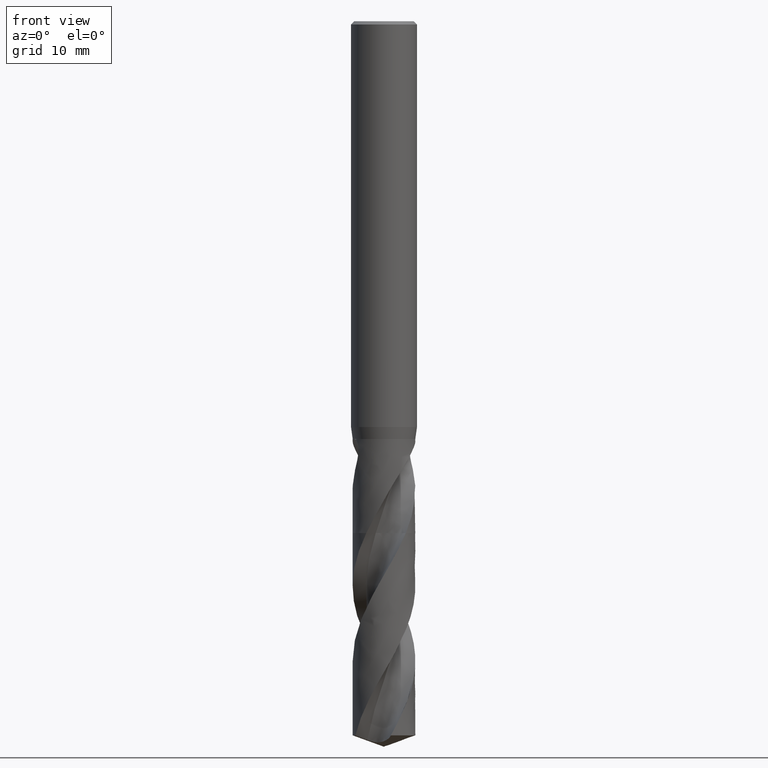
[diagram: clean part render]
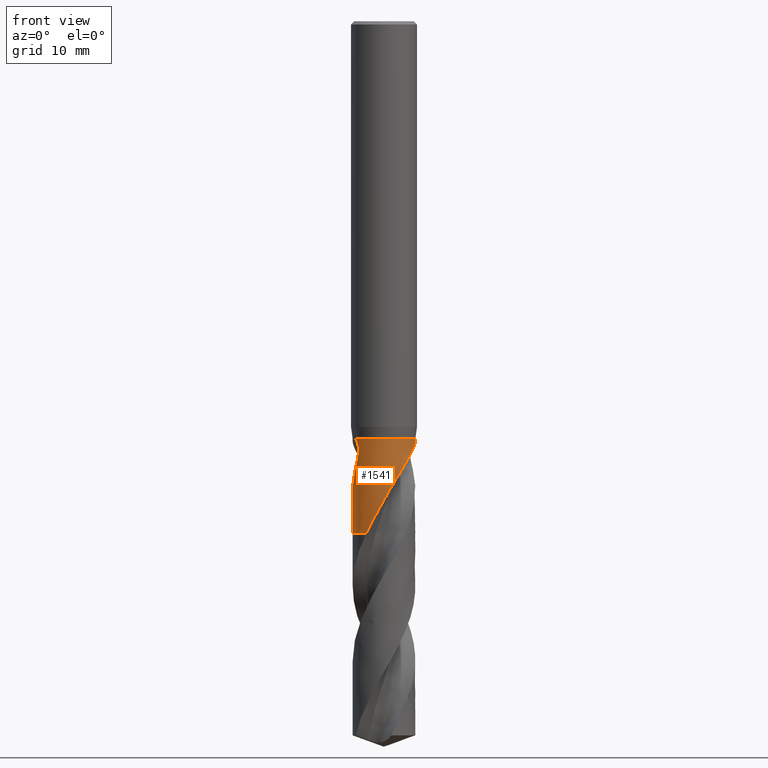
[diagram: same view with one face highlighted and labeled with its STEP entity id]
A machine part, front view. The second image highlights one B-rep face of the part: STEP entity #1541.
In plain terms, the highlighted face is a freeform B-spline surface patch.
Its self-contained STEP definition (entity closure, byte-faithful):
#100 = VERTEX_POINT('', #101);
#101 = CARTESIAN_POINT('', (-2.72189717389326, -0.844852516568349, -38.));
#108 = EDGE_CURVE('', #109, #100, #111, .T.);
#109 = VERTEX_POINT('', #110);
#110 = CARTESIAN_POINT('', (2.72261215262905, 0.842545587108875, -38.));
#111 = CIRCLE('', #112, 2.85);
#112 = AXIS2_PLACEMENT_3D('', #113, #114, #115);
#113 = CARTESIAN_POINT('', (1.42477179352876E-31, 2.32682891837997E-15, -38.));
#114 = DIRECTION('', (3.74939945665464E-33, 6.12323399573677E-17, -1.));
#115 = DIRECTION('', (-1., 6.12323399573677E-17, 0.));
#243 = VERTEX_POINT('', #244);
#244 = CARTESIAN_POINT('', (-1.60573856955049, -2.3545920339324, -46.55));
#253 = VERTEX_POINT('', #254);
#254 = CARTESIAN_POINT('', (2.26490238820969, -1.72994715869649, -39.6856971486502));
#274 = EDGE_CURVE('', #253, #243, #275, .T.);
#275 = B_SPLINE_CURVE_WITH_KNOTS('', 3, (#276, #277, #278, #279, #280, #281, #282, #283, #284, #285, #286, #287, #288, #289, #290, #291, #292, #293, #294, #295, #296, #297, #298, #299, #300, #301, #302, #303, #304, #305, #306, #307, #308, #309, #310, #311, #312, #313, #314, #315, #316, #317, #318, #319, #320, #321, #322, #323, #324, #325, #326, #327, #328, #329, #330, #331, #332, #333, #334, #335, #336, #337, #338, #339, #340, #341, #342, #343, #344, #345, #346, #347, #348, #349, #350, #351, #352, #353, #354, #355, #356, #357, #358, #359, #360, #361, #362, #363, #364, #365, #366, #367, #368, #369), .UNSPECIFIED., .F., .U., (4, 3, 3, 3, 3, 3, 3, 3, 3, 3, 3, 3, 3, 3, 3, 3, 3, 3, 3, 3, 3, 3, 3, 3, 3, 3, 3, 3, 3, 3, 3, 4), (0., 0.294464144787275, 0.588972866153418, 0.883540244718308, 1.17818620395919, 1.47291648056389, 1.76774567896791, 2.06267584458891, 2.35772589141371, 2.554577184641, 2.99727557387801, 3.19418350220039, 3.48958176285616, 3.68658211971523, 3.77414700893122, 3.97111472366981, 4.16799051263594, 4.36486817226672, 4.5617980451251, 4.64934990336675, 4.70772733627239, 5.00363635286242, 5.44757668672882, 5.64475350545712, 5.94059537577835, 6.23640703650116, 6.53220582574839, 6.82800243163335, 7.271761333795, 7.46888025135684, 7.91252490164702, 8.12718020859697), .UNSPECIFIED.);
#276 = CARTESIAN_POINT('', (2.26490238820969, -1.72994715869649, -39.6856971486502));
#277 = CARTESIAN_POINT('', (2.22643989728255, -1.78030348728112, -39.7606586389366));
#278 = CARTESIAN_POINT('', (2.18657839591994, -1.82900770856898, -39.836042715674));
#279 = CARTESIAN_POINT('', (2.14550143545426, -1.87598603152149, -39.9118059557993));
#280 = CARTESIAN_POINT('', (2.10441825667508, -1.92297146614771, -39.9875806651174));
#281 = CARTESIAN_POINT('', (2.06209945244589, -1.96825288441196, -40.0637707712371));
#282 = CARTESIAN_POINT('', (2.01873752853315, -2.01176509336749, -40.140345548052));
#283 = CARTESIAN_POINT('', (1.97536696824123, -2.05528596863441, -40.2169355762384));
#284 = CARTESIAN_POINT('', (1.93093244142023, -2.09705810344443, -40.2939435595798));
#285 = CARTESIAN_POINT('', (1.88561339589091, -2.13704518465023, -40.3713278083038));
#286 = CARTESIAN_POINT('', (1.84028226076345, -2.17704293306531, -40.4487327005444));
#287 = CARTESIAN_POINT('', (1.79404637925782, -2.21527190113545, -40.5265467785033));
#288 = CARTESIAN_POINT('', (1.74709188477468, -2.25170378739177, -40.6047403980937));
#289 = CARTESIAN_POINT('', (1.70012395355817, -2.28814609917918, -40.6829563939619));
#290 = CARTESIAN_POINT('', (1.65242147965214, -2.32280276603105, -40.7615866251728));
#291 = CARTESIAN_POINT('', (1.60415889110439, -2.35566853612531, -40.8405950700608));
#292 = CARTESIAN_POINT('', (1.55588010394225, -2.38854533712265, -40.9196300329489));
#293 = CARTESIAN_POINT('', (1.50702149850317, -2.41964310000126, -40.9990726509764));
#294 = CARTESIAN_POINT('', (1.45776011308407, -2.44896620080825, -41.0788957200608));
#295 = CARTESIAN_POINT('', (1.40848185760931, -2.47829934360531, -41.158746125356));
#296 = CARTESIAN_POINT('', (1.35878772191129, -2.5058645230155, -41.239009652429));
#297 = CARTESIAN_POINT('', (1.30884380724996, -2.53168479243046, -41.319655706458));
#298 = CARTESIAN_POINT('', (1.25887959172656, -2.55751555709256, -41.4003345409454));
#299 = CARTESIAN_POINT('', (1.20864517552323, -2.58161058334391, -41.4814205854727));
#300 = CARTESIAN_POINT('', (1.15829812833869, -2.60400565396613, -41.562884449988));
#301 = CARTESIAN_POINT('', (1.12470761901627, -2.61894718223003, -41.6172354567196));
#302 = CARTESIAN_POINT('', (1.09106112828081, -2.63313480925272, -41.6717644508913));
#303 = CARTESIAN_POINT('', (1.05740813055805, -2.64658044378586, -41.7264663171521));
#304 = CARTESIAN_POINT('', (0.98172598673967, -2.67681829822158, -41.8494852096617));
#305 = CARTESIAN_POINT('', (0.905977415624192, -2.70331275061656, -41.9734381882025));
#306 = CARTESIAN_POINT('', (0.8306871670691, -2.72625362548438, -42.0982614928412));
#307 = CARTESIAN_POINT('', (0.7971987984048, -2.736457503009, -42.1537816820272));
#308 = CARTESIAN_POINT('', (0.763794385510486, -2.74596129867328, -42.2094857503471));
#309 = CARTESIAN_POINT('', (0.730516149445259, -2.75478604530365, -42.2653674487006));
#310 = CARTESIAN_POINT('', (0.680592648979268, -2.76802479514755, -42.3492003173757));
#311 = CARTESIAN_POINT('', (0.630932048174867, -2.77974113058791, -42.4334440765467));
#312 = CARTESIAN_POINT('', (0.581633168390934, -2.79001843316984, -42.5180583056703));
#313 = CARTESIAN_POINT('', (0.548755869490707, -2.79687234040577, -42.5744873221977));
#314 = CARTESIAN_POINT('', (0.516035705898308, -2.80308684254361, -42.6310895454872));
#315 = CARTESIAN_POINT('', (0.48351862419217, -2.808684699296, -42.6878648053344));
#316 = CARTESIAN_POINT('', (0.469065073434076, -2.81117289634389, -42.7131008983953));
#317 = CARTESIAN_POINT('', (0.454651371479108, -2.8135393434265, -42.7383721677776));
#318 = CARTESIAN_POINT('', (0.440282695430469, -2.81578606220438, -42.7636792823976));
#319 = CARTESIAN_POINT('', (0.407961918113677, -2.82083981225537, -42.8206048901149));
#320 = CARTESIAN_POINT('', (0.37587535974101, -2.82528719942966, -42.8777208742024));
#321 = CARTESIAN_POINT('', (0.344015709561874, -2.82916121696427, -42.9349978549934));
#322 = CARTESIAN_POINT('', (0.312170928433521, -2.83303342647641, -42.9922481043441));
#323 = CARTESIAN_POINT('', (0.280550344519059, -2.83633427966577, -43.0496643198734));
#324 = CARTESIAN_POINT('', (0.249038421070775, -2.83909842464656, -43.107162435716));
#325 = CARTESIAN_POINT('', (0.217526198204052, -2.84186259589157, -43.1646610978914));
#326 = CARTESIAN_POINT('', (0.186119538886619, -2.84409143426985, -43.2222456102403));
#327 = CARTESIAN_POINT('', (0.154597533164307, -2.84580385879623, -43.2797798412868));
#328 = CARTESIAN_POINT('', (0.123067167602375, -2.84751673746865, -43.3373293307832));
#329 = CARTESIAN_POINT('', (0.091391380329286, -2.8487116619238, -43.3948171219617));
#330 = CARTESIAN_POINT('', (0.0596097014495644, -2.84937654294638, -43.4522499041329));
#331 = CARTESIAN_POINT('', (0.0454800775201362, -2.84967213836922, -43.477783596559));
#332 = CARTESIAN_POINT('', (0.0313295613559441, -2.84986301069273, -43.5033071654459));
#333 = CARTESIAN_POINT('', (0.0171622097772594, -2.84994832559391, -43.5288215137339));
#334 = CARTESIAN_POINT('', (0.00771576703069309, -2.85000521147869, -43.5458338557359));
#335 = CARTESIAN_POINT('', (-0.00173822956431968, -2.85001517149301, -43.5628422270776));
#336 = CARTESIAN_POINT('', (-0.0111985572827413, -2.84997799856679, -43.5798469062747));
#337 = CARTESIAN_POINT('', (-0.0591519552388076, -2.8497895729459, -43.6660418218127));
#338 = CARTESIAN_POINT('', (-0.107272598938241, -2.8483882324842, -43.7521497281514));
#339 = CARTESIAN_POINT('', (-0.155397720053053, -2.84576027602507, -43.8382089746442));
#340 = CARTESIAN_POINT('', (-0.227597893543104, -2.8418176591988, -43.9673201827464));
#341 = CARTESIAN_POINT('', (-0.299838418190636, -2.83511727214766, -44.0963549877317));
#342 = CARTESIAN_POINT('', (-0.371969277534249, -2.82562185307423, -44.2252157245138));
#343 = CARTESIAN_POINT('', (-0.404006315605659, -2.82140444730467, -44.2824494295849));
#344 = CARTESIAN_POINT('', (-0.43602697511165, -2.8166349193951, -44.3396543406759));
#345 = CARTESIAN_POINT('', (-0.468018041302603, -2.8113091457567, -44.3968213165894));
#346 = CARTESIAN_POINT('', (-0.516017075451456, -2.8033184151817, -44.4825940011471));
#347 = CARTESIAN_POINT('', (-0.563952194996042, -2.79407401491043, -44.5682949758555));
#348 = CARTESIAN_POINT('', (-0.611717203582852, -2.78357720619364, -44.653928108649));
#349 = CARTESIAN_POINT('', (-0.659477334693307, -2.77308146934803, -44.7395524971004));
#350 = CARTESIAN_POINT('', (-0.707074087197347, -2.76133178722578, -44.8251236940604));
#351 = CARTESIAN_POINT('', (-0.754385384733929, -2.74834544613661, -44.9106556914872));
#352 = CARTESIAN_POINT('', (-0.801694623642362, -2.73535967011432, -44.9961839672114));
#353 = CARTESIAN_POINT('', (-0.848734629199435, -2.72113335837324, -45.0816822860343));
#354 = CARTESIAN_POINT('', (-0.895410364175561, -2.70568665586519, -45.1671495637458));
#355 = CARTESIAN_POINT('', (-0.942085754626819, -2.69024006737299, -45.2526162106026));
#356 = CARTESIAN_POINT('', (-0.988403918083466, -2.67356990211779, -45.3380662747978));
#357 = CARTESIAN_POINT('', (-1.03422819660123, -2.65572439032271, -45.4235262660328));
#358 = CARTESIAN_POINT('', (-1.10297452811019, -2.62895226189006, -45.551734741501));
#359 = CARTESIAN_POINT('', (-1.17062851620492, -2.59953042533533, -45.6800074471178));
#360 = CARTESIAN_POINT('', (-1.23701135844137, -2.56754803247905, -45.8082675848942));
#361 = CARTESIAN_POINT('', (-1.26649879845122, -2.55334136613352, -45.8652410887533));
#362 = CARTESIAN_POINT('', (-1.29574019980422, -2.53862734191699, -45.922218211097));
#363 = CARTESIAN_POINT('', (-1.32472221983404, -2.52341257829114, -45.9791907668741));
#364 = CARTESIAN_POINT('', (-1.3899504500814, -2.48916955092712, -46.107415748507));
#365 = CARTESIAN_POINT('', (-1.45387673515157, -2.45238081319457, -46.2356549944809));
#366 = CARTESIAN_POINT('', (-1.51626648851527, -2.41317963189762, -46.3638725397668));
#367 = CARTESIAN_POINT('', (-1.54645346732829, -2.39421233093143, -46.4259099756329));
#368 = CARTESIAN_POINT('', (-1.57628858708339, -2.37467575630916, -46.4879597044428));
#369 = CARTESIAN_POINT('', (-1.60573856955049, -2.3545920339324, -46.55));
#635 = EDGE_CURVE('', #109, #253, #636, .T.);
#636 = B_SPLINE_CURVE_WITH_KNOTS('', 3, (#637, #638, #639, #640, #641, #642, #643, #644, #645, #646, #647, #648, #649, #650, #651, #652, #653, #654, #655, #656, #657, #658, #659, #660, #661, #662, #663, #664, #665, #666, #667, #668, #669, #670, #671, #672, #673, #674, #675, #676, #677, #678, #679, #680, #681, #682, #683, #684, #685, #686, #687, #688, #689, #690, #691), .UNSPECIFIED., .F., .U., (4, 3, 3, 3, 3, 3, 3, 3, 3, 3, 3, 3, 3, 3, 3, 3, 3, 3, 4), (0., 0.131189516067324, 0.262031631352206, 0.392624033666542, 0.523039731362444, 0.653331586877699, 0.78353752551788, 0.870569289019274, 0.90940814714141, 1.10577823939946, 1.30190734099568, 1.49786303011548, 1.69369373284877, 1.88943527108569, 2.08511500140986, 2.37755565205149, 2.66993749241897, 2.96235322309795, 3.27710008366545), .UNSPECIFIED.);
#637 = CARTESIAN_POINT('', (2.7226121526298, 0.842545587106441, -38.));
#638 = CARTESIAN_POINT('', (2.73554000069587, 0.800770380173232, -38.0000402721182));
#639 = CARTESIAN_POINT('', (2.74751609012111, 0.758650903443561, -38.0022648306568));
#640 = CARTESIAN_POINT('', (2.75846268708024, 0.716507923184428, -38.0063194603154));
#641 = CARTESIAN_POINT('', (2.76938029653746, 0.67447654105261, -38.0103633529764));
#642 = CARTESIAN_POINT('', (2.77930129622992, 0.63232245550804, -38.0162359505262));
#643 = CARTESIAN_POINT('', (2.78820327782561, 0.590273226161032, -38.023638746148));
#644 = CARTESIAN_POINT('', (2.79708826993543, 0.548304248023251, -38.0310274134894));
#645 = CARTESIAN_POINT('', (2.80497539499583, 0.506363039686759, -38.0399536695097));
#646 = CARTESIAN_POINT('', (2.81187357847026, 0.464614871372921, -38.0501730688559));
#647 = CARTESIAN_POINT('', (2.81876242801057, 0.422923192518052, -38.0603786403297));
#648 = CARTESIAN_POINT('', (2.82467563629924, 0.381363592240044, -38.0718887384066));
#649 = CARTESIAN_POINT('', (2.82963943109393, 0.340059832968268, -38.0845048485079));
#650 = CARTESIAN_POINT('', (2.83459851229063, 0.298795295567076, -38.0971089784059));
#651 = CARTESIAN_POINT('', (2.8386162346588, 0.257737406315192, -38.110832089641));
#652 = CARTESIAN_POINT('', (2.8417281486679, 0.216981863455248, -38.1255127007021));
#653 = CARTESIAN_POINT('', (2.84483801062296, 0.176253195558981, -38.1401836310949));
#654 = CARTESIAN_POINT('', (2.84704657168988, 0.135786393084884, -38.155825436198));
#655 = CARTESIAN_POINT('', (2.84839421413419, 0.095657727794957, -38.1723059067758));
#656 = CARTESIAN_POINT('', (2.84929500022522, 0.0688350763582141, -38.1833217208984));
#657 = CARTESIAN_POINT('', (2.84981175810865, 0.0421504736733346, -38.1947178885527));
#658 = CARTESIAN_POINT('', (2.84995717803215, 0.015623168153297, -38.2064607638971));
#659 = CARTESIAN_POINT('', (2.85002207323304, 0.0037850734852648, -38.2117011479948));
#660 = CARTESIAN_POINT('', (2.85001303946034, -0.00802303986993634, -38.217011203311));
#661 = CARTESIAN_POINT('', (2.84993122294259, -0.0197996085043483, -38.2223881968487));
#662 = CARTESIAN_POINT('', (2.84951755688969, -0.0793421898529137, -38.2495743904733));
#663 = CARTESIAN_POINT('', (2.84724142318116, -0.138129984867208, -38.2784918562425));
#664 = CARTESIAN_POINT('', (2.84325309617116, -0.195989364795982, -38.308839255455));
#665 = CARTESIAN_POINT('', (2.83926966374339, -0.253777738136626, -38.3391494115226));
#666 = CARTESIAN_POINT('', (2.83357321376318, -0.310719932151371, -38.3709287195702));
#667 = CARTESIAN_POINT('', (2.8263133397576, -0.366678204299377, -38.4039444036573));
#668 = CARTESIAN_POINT('', (2.81905988475216, -0.422586999534115, -38.4369308960972));
#669 = CARTESIAN_POINT('', (2.81023757352142, -0.477578983995349, -38.4711906806607));
#670 = CARTESIAN_POINT('', (2.79999348644348, -0.531541603145136, -38.5065404910143));
#671 = CARTESIAN_POINT('', (2.78975593335, -0.585469803325997, -38.5418677542039));
#672 = CARTESIAN_POINT('', (2.77808825904481, -0.638424385086041, -38.5783196665404));
#673 = CARTESIAN_POINT('', (2.76513471399063, -0.69031153364546, -38.6157496448661));
#674 = CARTESIAN_POINT('', (2.75218706686924, -0.742175057250241, -38.6531625807917));
#675 = CARTESIAN_POINT('', (2.73794335829735, -0.793018072984312, -38.6915860763306));
#676 = CARTESIAN_POINT('', (2.72254535644736, -0.842761402822253, -38.7309014307983));
#677 = CARTESIAN_POINT('', (2.70715221671484, -0.892489025562871, -38.7702043709363));
#678 = CARTESIAN_POINT('', (2.6905934478056, -0.941156859888617, -38.8104297444875));
#679 = CARTESIAN_POINT('', (2.67300898521893, -0.988697610464832, -38.8514805669876));
#680 = CARTESIAN_POINT('', (2.64672924908321, -1.05974660469366, -38.912830453465));
#681 = CARTESIAN_POINT('', (2.61812369941588, -1.1283677345534, -38.9761014204806));
#682 = CARTESIAN_POINT('', (2.58765615686283, -1.19437666330596, -39.0410394128949));
#683 = CARTESIAN_POINT('', (2.55719474138044, -1.26037231755928, -39.1059643461769));
#684 = CARTESIAN_POINT('', (2.5248317038889, -1.32384611165194, -39.1726482093404));
#685 = CARTESIAN_POINT('', (2.49101819621467, -1.38467626040436, -39.2408751166183));
#686 = CARTESIAN_POINT('', (2.45720076917833, -1.44551346004847, -39.3091099321546));
#687 = CARTESIAN_POINT('', (2.421891665218, -1.50378054415892, -39.378971297183));
#688 = CARTESIAN_POINT('', (2.38553486961363, -1.55939840510932, -39.4502847618293));
#689 = CARTESIAN_POINT('', (2.34640158752172, -1.61926367666968, -39.5270442749426));
#690 = CARTESIAN_POINT('', (2.306014178841, -1.67612228184037, -39.6055723044245));
#691 = CARTESIAN_POINT('', (2.26490238820969, -1.72994715869649, -39.6856971486502));
#999 = VERTEX_POINT('', #1000);
#1000 = CARTESIAN_POINT('', (-2.84448567207914, -0.177204010497761, -42.2452253322216));
#1009 = EDGE_CURVE('', #100, #999, #1010, .T.);
#1010 = B_SPLINE_CURVE_WITH_KNOTS('', 3, (#1011, #1012, #1013, #1014, #1015, #1016, #1017, #1018, #1019, #1020, #1021, #1022, #1023, #1024, #1025, #1026, #1027, #1028, #1029, #1030, #1031, #1032, #1033, #1034, #1035, #1036, #1037, #1038, #1039, #1040, #1041, #1042, #1043, #1044, #1045, #1046, #1047, #1048, #1049, #1050, #1051, #1052, #1053, #1054, #1055, #1056, #1057, #1058, #1059, #1060, #1061, #1062, #1063, #1064, #1065, #1066, #1067, #1068, #1069, #1070, #1071, #1072, #1073, #1074, #1075, #1076, #1077, #1078, #1079, #1080, #1081, #1082, #1083, #1084, #1085, #1086, #1087, #1088, #1089, #1090, #1091, #1092, #1093, #1094, #1095, #1096, #1097, #1098, #1099, #1100, #1101, #1102, #1103, #1104, #1105, #1106, #1107, #1108, #1109, #1110, #1111, #1112, #1113, #1114, #1115, #1116, #1117, #1118, #1119), .UNSPECIFIED., .F., .U., (4, 3, 3, 3, 3, 3, 3, 3, 3, 3, 3, 3, 3, 3, 3, 3, 3, 3, 3, 3, 3, 3, 3, 3, 3, 3, 3, 3, 3, 3, 3, 3, 3, 3, 3, 3, 4), (0., 0.131851525081879, 0.26335904754237, 0.350761464038422, 0.438021188494244, 0.525143884600338, 0.61215177539659, 0.699083602939458, 0.785988634023323, 0.872916392829652, 0.959906910366847, 1.0469856336641, 1.13416362427671, 1.22144093758614, 1.26031779413918, 1.29920870663843, 1.43037378836253, 1.56172204812776, 1.69321322426037, 1.82481141005537, 1.95648708826177, 2.15438135365732, 2.3523657121236, 2.55037757723586, 2.74836977584205, 2.94631185656012, 3.14418358857771, 3.44138779747022, 3.63902480433221, 3.83655935269863, 4.0339904081138, 4.23132709440953, 4.42857516009891, 4.62574013968715, 4.82282325171688, 5.01983750826018, 5.18308774563889), .UNSPECIFIED.);
#1011 = CARTESIAN_POINT('', (-2.72189717388695, -0.844852516588704, -38.));
#1012 = CARTESIAN_POINT('', (-2.7088685136011, -0.886827503838281, -38.0000405180361));
#1013 = CARTESIAN_POINT('', (-2.69483637813442, -0.928582170035077, -38.00229811262));
#1014 = CARTESIAN_POINT('', (-2.67997508261963, -0.969656411590151, -38.0071659418543));
#1015 = CARTESIAN_POINT('', (-2.66515256044941, -1.01062348982832, -38.0120210708487));
#1016 = CARTESIAN_POINT('', (-2.64944072868749, -1.05108324701454, -38.0195009662555));
#1017 = CARTESIAN_POINT('', (-2.63315355980522, -1.09041383450739, -38.0299610789547));
#1018 = CARTESIAN_POINT('', (-2.62232879562781, -1.11655369574701, -38.0369130700623));
#1019 = CARTESIAN_POINT('', (-2.6112219866227, -1.14226733289779, -38.0451999479131));
#1020 = CARTESIAN_POINT('', (-2.59996813471653, -1.16733272825645, -38.0548888497225));
#1021 = CARTESIAN_POINT('', (-2.58873265570156, -1.19235720217901, -38.0645619335576));
#1022 = CARTESIAN_POINT('', (-2.57731943763567, -1.21680457116288, -38.075661474984));
#1023 = CARTESIAN_POINT('', (-2.56589616454213, -1.24043414689695, -38.0881986523831));
#1024 = CARTESIAN_POINT('', (-2.55449082999092, -1.26402661591555, -38.1007161420197));
#1025 = CARTESIAN_POINT('', (-2.543040177203, -1.28687715950901, -38.114707946719));
#1026 = CARTESIAN_POINT('', (-2.53173422326311, -1.30874818920919, -38.1301094811485));
#1027 = CARTESIAN_POINT('', (-2.52044316766318, -1.33059039851637, -38.1454907203162));
#1028 = CARTESIAN_POINT('', (-2.50925897606752, -1.35152914930936, -38.1623311661412));
#1029 = CARTESIAN_POINT('', (-2.49837487229512, -1.37135808506908, -38.1804833603343));
#1030 = CARTESIAN_POINT('', (-2.48750028352573, -1.39116968615547, -38.1986196856798));
#1031 = CARTESIAN_POINT('', (-2.47688822978501, -1.40994235022308, -38.2181283501118));
#1032 = CARTESIAN_POINT('', (-2.4667122981529, -1.42752598510194, -38.2387910874768));
#1033 = CARTESIAN_POINT('', (-2.4565395032193, -1.44510419988133, -38.2594474556188));
#1034 = CARTESIAN_POINT('', (-2.44676857305667, -1.46155433535061, -38.281325738469));
#1035 = CARTESIAN_POINT('', (-2.43753511422966, -1.47679469354999, -38.3041651705209));
#1036 = CARTESIAN_POINT('', (-2.42829924063463, -1.49203903746373, -38.3270105756249));
#1037 = CARTESIAN_POINT('', (-2.41957219185483, -1.50612183962626, -38.3508871025126));
#1038 = CARTESIAN_POINT('', (-2.41144363592112, -1.51902586902776, -38.3755248077715));
#1039 = CARTESIAN_POINT('', (-2.40330921146093, -1.53193921467668, -38.4001803005719));
#1040 = CARTESIAN_POINT('', (-2.39575127763583, -1.54370901170521, -38.4256641218737));
#1041 = CARTESIAN_POINT('', (-2.38881606253868, -1.55436733732962, -38.4517240445293));
#1042 = CARTESIAN_POINT('', (-2.38187381534268, -1.56503647017464, -38.4778103911602));
#1043 = CARTESIAN_POINT('', (-2.37553867761243, -1.57461801353256, -38.5045335940531));
#1044 = CARTESIAN_POINT('', (-2.36982222485517, -1.58317485534052, -38.5316744359429));
#1045 = CARTESIAN_POINT('', (-2.36409925550124, -1.59174145170944, -38.5588462176354));
#1046 = CARTESIAN_POINT('', (-2.35898468703965, -1.59929845816563, -38.5864882468628));
#1047 = CARTESIAN_POINT('', (-2.35446585760854, -1.60592357394605, -38.614419102442));
#1048 = CARTESIAN_POINT('', (-2.34994187983297, -1.6125562377826, -38.6423817799051));
#1049 = CARTESIAN_POINT('', (-2.34600735646774, -1.61826591031186, -38.6706775220013));
#1050 = CARTESIAN_POINT('', (-2.342634511176, -1.62313386602805, -38.6991607952889));
#1051 = CARTESIAN_POINT('', (-2.34113210903265, -1.62530225101733, -38.7118484008965));
#1052 = CARTESIAN_POINT('', (-2.33974030917256, -1.6273046220341, -38.7245789669783));
#1053 = CARTESIAN_POINT('', (-2.33845607702994, -1.62914799076134, -38.7373416932252));
#1054 = CARTESIAN_POINT('', (-2.33717138057258, -1.63099202595944, -38.750109033842));
#1055 = CARTESIAN_POINT('', (-2.33599403300164, -1.63267736591373, -38.7629114481982));
#1056 = CARTESIAN_POINT('', (-2.33492076734393, -1.63421082184216, -38.7757392504639));
#1057 = CARTESIAN_POINT('', (-2.33130102770146, -1.63938261800862, -38.8190028209074));
#1058 = CARTESIAN_POINT('', (-2.32886184704708, -1.64283545450379, -38.8626080211627));
#1059 = CARTESIAN_POINT('', (-2.32746797158338, -1.6448078432612, -38.9062629557288));
#1060 = CARTESIAN_POINT('', (-2.32607214950878, -1.64678298654981, -38.9499788564095));
#1061 = CARTESIAN_POINT('', (-2.32572100506652, -1.64727737028752, -38.9938228818526));
#1062 = CARTESIAN_POINT('', (-2.32627755565329, -1.64649103673957, -39.0375950352562));
#1063 = CARTESIAN_POINT('', (-2.32683471180718, -1.64570384760409, -39.0814148159155));
#1064 = CARTESIAN_POINT('', (-2.32830162833168, -1.64363218720678, -39.1252212459742));
#1065 = CARTESIAN_POINT('', (-2.33054860304692, -1.64043994368463, -39.1688774477406));
#1066 = CARTESIAN_POINT('', (-2.33279740638682, -1.63724510226267, -39.2125691776357));
#1067 = CARTESIAN_POINT('', (-2.3358296417902, -1.63292431427319, -39.2561549589113));
#1068 = CARTESIAN_POINT('', (-2.33952771846118, -1.62760869208536, -39.2995404378079));
#1069 = CARTESIAN_POINT('', (-2.34322797276765, -1.62228993976029, -39.3429514645139));
#1070 = CARTESIAN_POINT('', (-2.3475977393415, -1.61597067802704, -39.3861962330167));
#1071 = CARTESIAN_POINT('', (-2.35253095002273, -1.60875670291849, -39.4292092571305));
#1072 = CARTESIAN_POINT('', (-2.35994503071782, -1.59791488061587, -39.4938531680287));
#1073 = CARTESIAN_POINT('', (-2.36863844694979, -1.58504223767187, -39.5580427554559));
#1074 = CARTESIAN_POINT('', (-2.37829298862741, -1.57042110920788, -39.6216380488905));
#1075 = CARTESIAN_POINT('', (-2.38795192561838, -1.55579332434907, -39.6852622946309));
#1076 = CARTESIAN_POINT('', (-2.39858280014455, -1.53939951973386, -39.7483582315015));
#1077 = CARTESIAN_POINT('', (-2.40991149953032, -1.52145540993862, -39.8108480810259));
#1078 = CARTESIAN_POINT('', (-2.42124177285116, -1.50350880710667, -39.8733466124794));
#1079 = CARTESIAN_POINT('', (-2.43327923714225, -1.48399646470625, -39.9352871786958));
#1080 = CARTESIAN_POINT('', (-2.44578423262034, -1.46309243982249, -39.9966318517517));
#1081 = CARTESIAN_POINT('', (-2.45828798610431, -1.44219049112307, -40.0579704320647));
#1082 = CARTESIAN_POINT('', (-2.47126653148841, -1.41988454043466, -40.1187496216221));
#1083 = CARTESIAN_POINT('', (-2.4845073673318, -1.39632486967539, -40.1789599108202));
#1084 = CARTESIAN_POINT('', (-2.49774485151419, -1.37277116259021, -40.2391549589504));
#1085 = CARTESIAN_POINT('', (-2.51125110935838, -1.34795255302425, -40.2988089248789));
#1086 = CARTESIAN_POINT('', (-2.52484005040707, -1.32199951583213, -40.3579294159629));
#1087 = CARTESIAN_POINT('', (-2.53842416194028, -1.29605570236057, -40.417028895599));
#1088 = CARTESIAN_POINT('', (-2.55209607595246, -1.26896825626725, -40.4756169060086));
#1089 = CARTESIAN_POINT('', (-2.56568983654191, -1.2408608554812, -40.5337163184922));
#1090 = CARTESIAN_POINT('', (-2.58610772453767, -1.1986434162873, -40.6209818907305));
#1091 = CARTESIAN_POINT('', (-2.60635504897689, -1.15410351102863, -40.7071913048696));
#1092 = CARTESIAN_POINT('', (-2.62594839644193, -1.10765293265718, -40.7924727619658));
#1093 = CARTESIAN_POINT('', (-2.63897772251314, -1.0767638907067, -40.8491838428221));
#1094 = CARTESIAN_POINT('', (-2.65172399515777, -1.04502010773005, -40.905501537782));
#1095 = CARTESIAN_POINT('', (-2.66406791111787, -1.0125424262479, -40.9614735922975));
#1096 = CARTESIAN_POINT('', (-2.67640542777513, -0.980081581766266, -41.0174166299169));
#1097 = CARTESIAN_POINT('', (-2.68834336352226, -0.946881224173769, -41.0730249000722));
#1098 = CARTESIAN_POINT('', (-2.69977896224919, -0.913068209388891, -41.1283552833415));
#1099 = CARTESIAN_POINT('', (-2.71120856959956, -0.879272910030099, -41.1836566777342));
#1100 = CARTESIAN_POINT('', (-2.72213770806001, -0.844861733853172, -41.2386906945268));
#1101 = CARTESIAN_POINT('', (-2.73248283407587, -0.809961456787124, -41.2935172522624));
#1102 = CARTESIAN_POINT('', (-2.74282301527477, -0.775077861536446, -41.3483176037156));
#1103 = CARTESIAN_POINT('', (-2.75258141958028, -0.739699870742921, -41.4029181362228));
#1104 = CARTESIAN_POINT('', (-2.7616916922741, -0.703959513625943, -41.4573836564061));
#1105 = CARTESIAN_POINT('', (-2.77079787369678, -0.668235206905769, -41.5118247170349));
#1106 = CARTESIAN_POINT('', (-2.7792576488757, -0.632144030203923, -41.5661380162217));
#1107 = CARTESIAN_POINT('', (-2.78702158907127, -0.595827711718309, -41.6203950338085));
#1108 = CARTESIAN_POINT('', (-2.79478225888993, -0.559526690626362, -41.6746291969049));
#1109 = CARTESIAN_POINT('', (-2.80184840482146, -0.522997039936704, -41.7288145386889));
#1110 = CARTESIAN_POINT('', (-2.80818913043712, -0.486388535737552, -41.7830266147798));
#1111 = CARTESIAN_POINT('', (-2.81452722323367, -0.449795232254398, -41.8372161807357));
#1112 = CARTESIAN_POINT('', (-2.8201414015645, -0.413118355302701, -41.8914390158503));
#1113 = CARTESIAN_POINT('', (-2.8250209724073, -0.376505651297419, -41.9457662652966));
#1114 = CARTESIAN_POINT('', (-2.82989883846059, -0.339905738776492, -42.0000745342775));
#1115 = CARTESIAN_POINT('', (-2.83404328509443, -0.303365375004126, -42.0544942494216));
#1116 = CARTESIAN_POINT('', (-2.8374626946115, -0.267030815989592, -42.109091343788));
#1117 = CARTESIAN_POINT('', (-2.84029609065679, -0.23692322129951, -42.1543316668584));
#1118 = CARTESIAN_POINT('', (-2.84263233346244, -0.206953874092232, -42.1996984942601));
#1119 = CARTESIAN_POINT('', (-2.84448567207914, -0.177204010497761, -42.2452253322216));
#1279 = VERTEX_POINT('', #1280);
#1280 = CARTESIAN_POINT('', (-2.85, 2.77842022918388E-15, -42.5250457865619));
#1302 = EDGE_CURVE('', #999, #1279, #1303, .T.);
#1303 = B_SPLINE_CURVE_WITH_KNOTS('', 3, (#1304, #1305, #1306, #1307), .UNSPECIFIED., .F., .U., (4, 4), (0., 0.331256933234848), .UNSPECIFIED.);
#1304 = CARTESIAN_POINT('', (-2.84448567207914, -0.177204010497761, -42.2452253322216));
#1305 = CARTESIAN_POINT('', (-2.84824634818148, -0.116837491363103, -42.337605477973));
#1306 = CARTESIAN_POINT('', (-2.85, -0.0576818153501414, -42.4308908141805));
#1307 = CARTESIAN_POINT('', (-2.85, 2.36902548885336E-15, -42.5250457865619));
#1471 = VERTEX_POINT('', #1472);
#1472 = CARTESIAN_POINT('', (-2.85, 3.02487759389396E-15, -46.55));
#1479 = EDGE_CURVE('', #1279, #1471, #1480, .T.);
#1480 = LINE('', #1481, #1482);
#1481 = CARTESIAN_POINT('', (-2.85, 2.77842022918388E-15, -42.5250457865619));
#1482 = VECTOR('', #1483, 4.02495421343808);
#1483 = DIRECTION('', (0., 2.4645736471008E-16, -4.02495421343808));
#1541 = ADVANCED_FACE('', (#1542), #1557, .T.);
#1542 = FACE_OUTER_BOUND('', #1543, .T.);
#1543 = EDGE_LOOP('', (#1544, #1551, #1552, #1553, #1554, #1555, #1556));
#1544 = ORIENTED_EDGE('', *, *, #1545, .F.);
#1545 = EDGE_CURVE('', #243, #1471, #1546, .T.);
#1546 = CIRCLE('', #1547, 2.85);
#1547 = AXIS2_PLACEMENT_3D('', #1548, #1549, #1550);
#1548 = CARTESIAN_POINT('', (1.74534544707274E-31, 2.85036542501546E-15, -46.55));
#1549 = DIRECTION('', (3.74939945665464E-33, 6.12323399573677E-17, -1.));
#1550 = DIRECTION('', (-1., 6.12323399573677E-17, 0.));
#1551 = ORIENTED_EDGE('', *, *, #274, .F.);
#1552 = ORIENTED_EDGE('', *, *, #635, .F.);
#1553 = ORIENTED_EDGE('', *, *, #108, .T.);
#1554 = ORIENTED_EDGE('', *, *, #1009, .T.);
#1555 = ORIENTED_EDGE('', *, *, #1302, .T.);
#1556 = ORIENTED_EDGE('', *, *, #1479, .T.);
#1557 = (
   BOUNDED_SURFACE ()
   B_SPLINE_SURFACE (2, 1, ((#1558, #1559), (#1560, #1561), (#1562, #1563), (#1564, #1565), (#1566, #1567), (#1568, #1569), (#1570, #1571), (#1572, #1573), (#1574, #1575)), .UNSPECIFIED., .T., .F., .U.)
   B_SPLINE_SURFACE_WITH_KNOTS ((3, 2, 2, 2, 3), (2, 2), (0., 4.47676953136546, 8.95353906273091, 13.4303085940964, 17.9070781254618), (0., 0.317104919378964), .UNSPECIFIED.)
   GEOMETRIC_REPRESENTATION_ITEM ()
   RATIONAL_B_SPLINE_SURFACE (((1., 1.), (0.707106781186548, 0.707106781186548), (1., 1.), (0.707106781186548, 0.707106781186548), (1., 1.), (0.707106781186548, 0.707106781186548), (1., 1.), (0.707106781186548, 0.707106781186548), (1., 1.)))
   REPRESENTATION_ITEM ('')
   SURFACE ()
);
#1558 = CARTESIAN_POINT('', (-2.85, 2.50134108725847E-15, -38.));
#1559 = CARTESIAN_POINT('', (-2.85, 3.02487759389396E-15, -46.55));
#1560 = CARTESIAN_POINT('', (-2.85, 2.85, -38.));
#1561 = CARTESIAN_POINT('', (-2.85, 2.85, -46.55));
#1562 = CARTESIAN_POINT('', (1.23259516440783E-31, 2.85, -38.));
#1563 = CARTESIAN_POINT('', (1.97215226305253E-31, 2.85, -46.55));
#1564 = CARTESIAN_POINT('', (2.85, 2.85, -38.));
#1565 = CARTESIAN_POINT('', (2.85, 2.85, -46.55));
#1566 = CARTESIAN_POINT('', (2.85, 2.50134108725847E-15, -38.));
#1567 = CARTESIAN_POINT('', (2.85, 3.02487759389396E-15, -46.55));
#1568 = CARTESIAN_POINT('', (2.85, -2.85, -38.));
#1569 = CARTESIAN_POINT('', (2.85, -2.85, -46.55));
#1570 = CARTESIAN_POINT('', (3.49024337756996E-16, -2.85, -38.));
#1571 = CARTESIAN_POINT('', (3.49024337756996E-16, -2.85, -46.55));
#1572 = CARTESIAN_POINT('', (-2.85, -2.85, -38.));
#1573 = CARTESIAN_POINT('', (-2.85, -2.85, -46.55));
#1574 = CARTESIAN_POINT('', (-2.85, 2.50134108725847E-15, -38.));
#1575 = CARTESIAN_POINT('', (-2.85, 3.02487759389396E-15, -46.55));